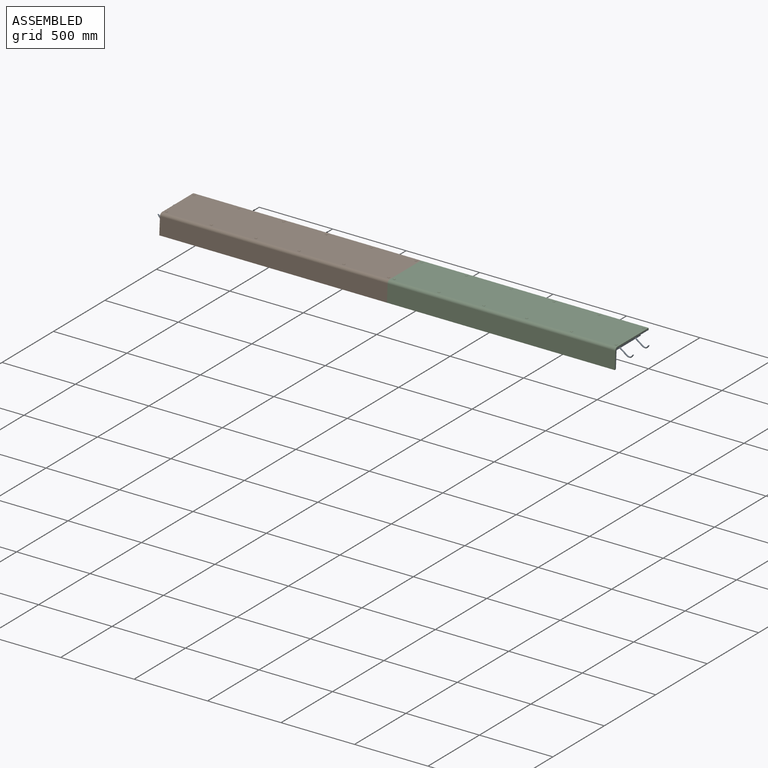
[diagram: assembled view]
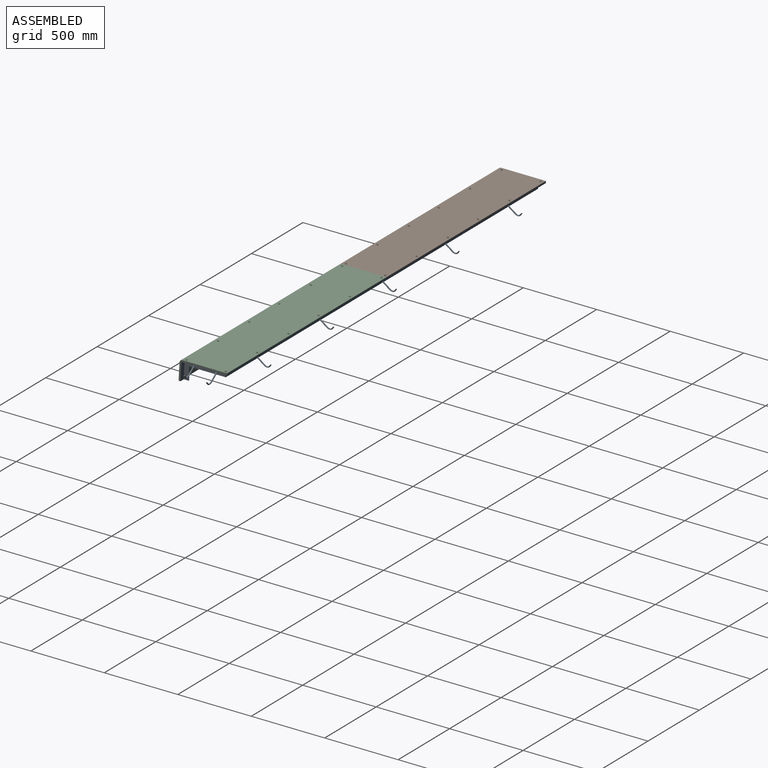
[diagram: assembled view, second angle]
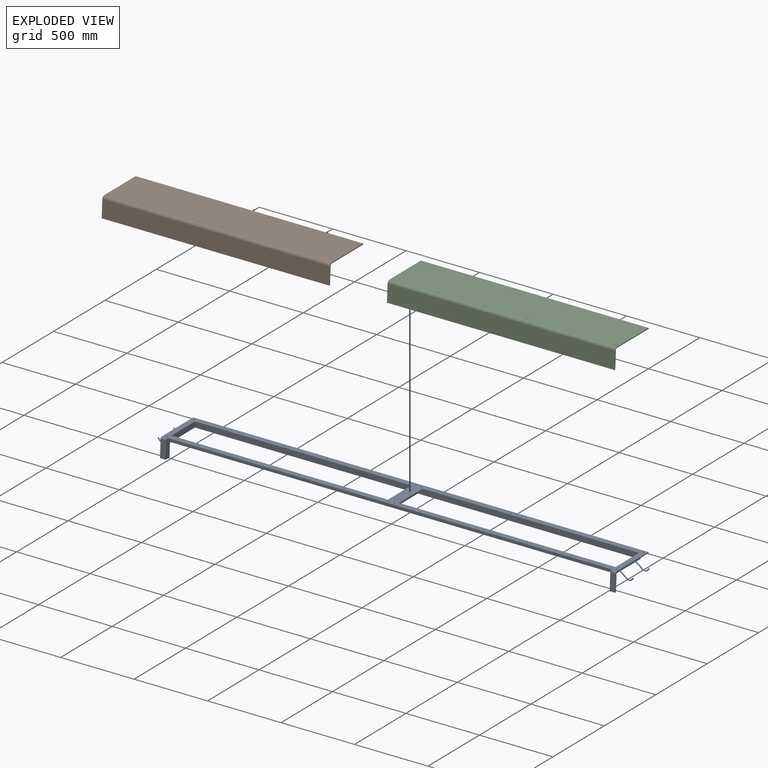
[diagram: exploded view]
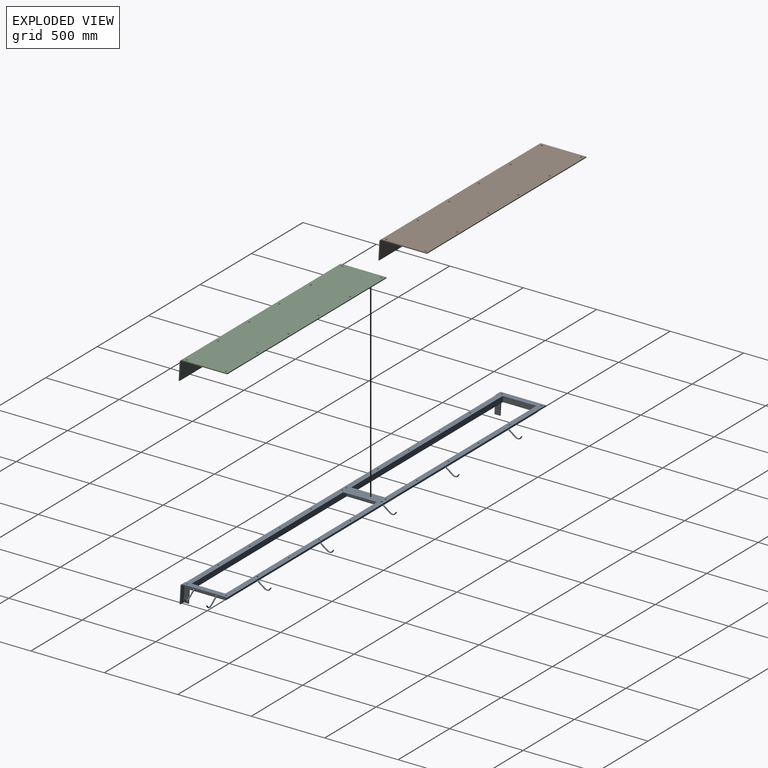
[diagram: exploded view, second angle]
ASSEMBLY  parts=3 mates=2
PART A: 80 faces, bbox 3250.5x399.7x127 mm
  f0: plane 1502.41x38.1mm, normal (0,-1,0), area 57056.3mm2, adj f2,f6,f11,f16,f35,f37
  f1: plane 1504.95x38.1mm, normal (0,1,0), area 57137mm2, adj f4,f11,f16,f33,f34,f36
  f2: plane 228.6x29.21mm, normal (0,0,-1), area 6677.4mm2, adj f0,f32,f35,f37
  f3: plane 1504.95x38.1mm, normal (0,-1,0), area 57137mm2, adj f4,f11,f16,f33,f34,f36
  f4: plane 228.6x38.1mm, normal (-1,0,0), area 8709.7mm2, adj f1,f3,f11,f16
  f5: plane 127x50.8mm, normal (-1,0,0), area 4868mm2, adj f7,f8,f9,f10,f11,f29,f30,f31
  f6: plane 228.6x38.1mm, normal (1,0,0), area 8709.7mm2, adj f0,f11,f16,f32
  f7: cylinder r=12.7mm len=38.1mm, axis (-1,0,0), area 733.3mm2, adj f5,f8,f16,f22
  f8: plane 115x38.1mm, normal (0,-1,0.06), area 4388.3mm2, adj f5,f7,f9,f22
  f9: plane 38.16x38.1mm, normal (0,0,-1), area 444.2mm2, adj f5,f8,f10,f20,f22,f26
  f10: plane 88.9x6.35mm, normal (0,1,-0.06), area 565.4mm2, adj f5,f9,f11,f26
  f11: plane 3035.3x249.02mm, normal (0,0,-1), area 45033.4mm2, adj f0,f1,f3,f4,f5,f6,f10,f24
  f12: plane 114.65x31.75mm, normal (0,1,-0.06), area 3645.8mm2, adj f14,f19,f23,f27
  f13: plane 3098.8x304.8mm, normal (0,0,-1), area 114728mm2, adj f14,f15,f21,f22,f23,f24,f26,f27
  f14: cylinder r=6.35mm len=31.75mm, axis (-1,0,0), area 305.5mm2, adj f12,f13,f23,f27
  f15: plane 3098.8x6.35mm, normal (0,1,0), area 19677.4mm2, adj f13,f16,f22,f23
  f16: plane 3098.8x304.8mm, normal (0,0,1), area 269257.1mm2, adj f0,f1,f3,f4,f6,f7,f15,f17
  f17: cylinder r=12.7mm len=38.1mm, axis (-1,0,0), area 733.3mm2, adj f16,f18,f23,f28
  f18: plane 115x38.1mm, normal (0,-1,0.06), area 4388.3mm2, adj f17,f19,f23,f28
  f19: plane 38.16x38.1mm, normal (0,0,-1), area 444.2mm2, adj f12,f18,f23,f25,f27,f28
  f20: plane 114.65x31.75mm, normal (0,1,-0.06), area 3645.8mm2, adj f9,f21,f22,f26
  f21: cylinder r=6.35mm len=31.75mm, axis (-1,0,0), area 305.5mm2, adj f13,f20,f22,f26
  f22: plane 323.85x127mm, normal (1,0,0), area 2757.4mm2, adj f7,f8,f9,f13,f15,f16,f20,f21
  f23: plane 323.85x127mm, normal (-1,0,0), area 2757.4mm2, adj f12,f13,f14,f15,f16,f17,f18,f19
  f24: plane 3035.3x31.75mm, normal (0,1,0), area 96014.5mm2, adj f11,f13,f26,f27,f63,f65,f67,f69
  f25: plane 88.9x6.35mm, normal (0,1,-0.06), area 565.4mm2, adj f11,f19,f27,f28
  f26: plane 285.74x120.65mm, normal (1,0,0), area 11564.8mm2, adj f9,f10,f11,f13,f20,f21,f24,f73
  f27: plane 285.74x120.65mm, normal (-1,0,0), area 11564.8mm2, adj f11,f12,f13,f14,f19,f24,f25,f77
  f28: plane 127x50.8mm, normal (1,0,0), area 4868mm2, adj f11,f17,f18,f19,f25,f29,f30,f31
  f29: plane 3022.6x31.75mm, normal (0,0,-1), area 95255mm2, adj f5,f28,f30,f31,f41,f44,f45,f46
  f30: plane 3022.6x6.35mm, normal (0,-1,0), area 19193.5mm2, adj f5,f16,f28,f29
  f31: plane 3022.6x31.75mm, normal (0,-1,0), area 95967.6mm2, adj f5,f11,f28,f29
  f32: plane 1502.41x38.1mm, normal (0,1,0), area 57056.3mm2, adj f2,f6,f11,f16,f35,f37
  f33: plane 228.6x31.75mm, normal (0,0,-1), area 7258mm2, adj f1,f3,f34,f36
  f34: plane 228.6x6.35mm, normal (1,0,0), area 1451.6mm2, adj f1,f3,f16,f33
  f35: plane 228.6x6.35mm, normal (-1,0,0), area 1451.6mm2, adj f0,f2,f16,f32
  f36: plane 228.6x31.75mm, normal (1,0,0), area 7258mm2, adj f1,f3,f11,f33
  f37: plane 228.6x31.75mm, normal (-1,0,0), area 7258mm2, adj f0,f2,f11,f32
  f38: cylinder r=4.76mm len=9.53mm, axis (0,0,1), area 190mm2, adj f13,f16
  f39: cylinder r=4.76mm len=9.53mm, axis (0,0,1), area 190mm2, adj f13,f16
  f40: cylinder r=4.76mm len=9.53mm, axis (0,0,1), area 190mm2, adj f13,f16
  f41: cylinder r=4.76mm len=9.53mm, axis (0,0,1), area 190mm2, adj f16,f29
  f42: cylinder r=4.76mm len=9.53mm, axis (0,0,1), area 190mm2, adj f13,f16
  f43: cylinder r=4.76mm len=9.53mm, axis (0,0,1), area 190mm2, adj f13,f16
  f44: cylinder r=4.76mm len=9.53mm, axis (0,0,1), area 190mm2, adj f16,f29
  f45: cylinder r=4.76mm len=9.53mm, axis (0,0,1), area 190mm2, adj f16,f29
  f46: cylinder r=4.76mm len=9.53mm, axis (0,0,1), area 190mm2, adj f16,f29
  f47: cylinder r=4.76mm len=9.53mm, axis (0,0,1), area 190mm2, adj f13,f16
  f48: cylinder r=4.76mm len=9.53mm, axis (0,0,1), area 190mm2, adj f13,f16
  f49: cylinder r=4.76mm len=9.53mm, axis (0,0,1), area 190mm2, adj f16,f29
  f50: cylinder r=4.76mm len=9.53mm, axis (0,0,1), area 190mm2, adj f13,f16
  f51: cylinder r=4.76mm len=9.53mm, axis (0,0,1), area 190mm2, adj f16,f29
  f52: cylinder r=4.76mm len=9.53mm, axis (0,0,1), area 190mm2, adj f16,f29
  f53: cylinder r=4.76mm len=9.53mm, axis (0,0,1), area 190mm2, adj f13,f16
  f54: cylinder r=4.76mm len=9.53mm, axis (0,0,1), area 190mm2, adj f13,f16
  f55: cylinder r=4.76mm len=9.53mm, axis (0,0,1), area 190mm2, adj f16,f29
  f56: cylinder r=4.76mm len=9.53mm, axis (0,0,1), area 190mm2, adj f16,f29
  f57: cylinder r=4.76mm len=9.53mm, axis (0,0,1), area 190mm2, adj f13,f16
  f58: cylinder r=4.76mm len=9.53mm, axis (0,0,1), area 190mm2, adj f13,f16
  f59: cylinder r=4.76mm len=9.53mm, axis (0,0,1), area 190mm2, adj f16,f29
  f60: cylinder r=4.76mm len=9.53mm, axis (0,0,1), area 190mm2, adj f13,f16
  f61: cylinder r=4.76mm len=9.53mm, axis (0,0,1), area 190mm2, adj f13,f16
  f62: plane 9.53x9.46mm, normal (0,-0.12,0.99), area 71.3mm2, adj f63
  f63: bspline ~107.6x63.88mm, area 3289.7mm2, adj f24,f62
  f64: plane 9.53x9.46mm, normal (0,-0.12,0.99), area 71.3mm2, adj f65
  f65: bspline ~107.6x63.88mm, area 3289.7mm2, adj f24,f64
  f66: plane 9.53x9.46mm, normal (0,-0.12,0.99), area 71.3mm2, adj f67
  f67: bspline ~107.6x63.88mm, area 3289.7mm2, adj f24,f66
  f68: plane 9.53x9.46mm, normal (0,-0.12,0.99), area 71.3mm2, adj f69
  f69: bspline ~107.6x63.88mm, area 3289.7mm2, adj f24,f68
  f70: plane 9.53x9.46mm, normal (0,-0.12,0.99), area 71.3mm2, adj f71
  f71: bspline ~107.6x63.88mm, area 3289.7mm2, adj f24,f70
  f72: plane 9.53x9.46mm, normal (-0.12,0,0.99), area 71.3mm2, adj f73
  f73: bspline ~107.6x63.88mm, area 3289.7mm2, adj f26,f72
  f74: plane 9.53x9.46mm, normal (-0.12,0,0.99), area 71.3mm2, adj f75
  f75: bspline ~107.6x63.88mm, area 3289.7mm2, adj f26,f74
  f76: plane 9.53x9.46mm, normal (0.12,0,0.99), area 71.3mm2, adj f77
  f77: bspline ~107.6x63.88mm, area 3289.7mm2, adj f27,f76
  f78: plane 9.53x9.46mm, normal (0.12,0,0.99), area 71.3mm2, adj f79
  f79: bspline ~107.6x63.88mm, area 3289.7mm2, adj f27,f78
PART B: 34 faces, bbox 1549.4x330.2x133.4 mm
  f0: plane 1549.4x304.8mm, normal (0,0,-1), area 471204.9mm2, adj f1,f7,f8,f9,f10,f12,f14,f16
  f1: plane 1549.4x6.35mm, normal (0,1,0), area 9838.7mm2, adj f0,f2,f8,f9
  f2: plane 1549.4x304.8mm, normal (0,0,1), area 468836.8mm2, adj f1,f3,f8,f9,f11,f13,f15,f17
  f3: cylinder r=19.05mm len=1549.4mm, axis (-1,0,0), area 44733.1mm2, adj f2,f4,f8,f9
  f4: plane 1549.4x115.35mm, normal (0,-1,0.06), area 178999.3mm2, adj f3,f5,f8,f9
  f5: plane 1549.4x6.36mm, normal (0,0,-1), area 9853.7mm2, adj f4,f6,f8,f9
  f6: plane 1549.4x115mm, normal (0,1,-0.06), area 178455.2mm2, adj f5,f7,f8,f9
  f7: cylinder r=12.7mm len=1549.4mm, axis (-1,0,0), area 29822.1mm2, adj f0,f6,f8,f9
  f8: plane 330.2x133.35mm, normal (1,0,0), area 2820.7mm2, adj f0,f1,f2,f3,f4,f5,f6,f7
  f9: plane 330.2x133.35mm, normal (-1,0,0), area 2820.7mm2, adj f0,f1,f2,f3,f4,f5,f6,f7
  f10: cylinder r=5.28mm len=10.57mm, axis (0,0,1), area 48.8mm2, adj f0,f11
  f11: cone r=5.28mm half-angle=41deg, axis (0,0,1), area 300.8mm2, adj f2,f10
  f12: cylinder r=5.28mm len=10.57mm, axis (0,0,1), area 48.8mm2, adj f0,f13
  f13: cone r=5.28mm half-angle=41deg, axis (0,0,1), area 300.8mm2, adj f2,f12
  f14: cylinder r=5.28mm len=10.57mm, axis (0,0,1), area 48.8mm2, adj f0,f15
  f15: cone r=5.28mm half-angle=41deg, axis (0,0,1), area 300.8mm2, adj f2,f14
  f16: cylinder r=5.28mm len=10.57mm, axis (0,0,1), area 48.8mm2, adj f0,f17
  f17: cone r=5.28mm half-angle=41deg, axis (0,0,1), area 300.8mm2, adj f2,f16
  f18: cylinder r=5.28mm len=10.57mm, axis (0,0,1), area 48.8mm2, adj f0,f19
  f19: cone r=5.28mm half-angle=41deg, axis (0,0,1), area 300.8mm2, adj f2,f18
  f20: cylinder r=5.28mm len=10.57mm, axis (0,0,1), area 48.8mm2, adj f0,f21
  f21: cone r=5.28mm half-angle=41deg, axis (0,0,1), area 300.8mm2, adj f2,f20
  f22: cylinder r=5.28mm len=10.57mm, axis (0,0,1), area 48.8mm2, adj f0,f23
  f23: cone r=5.28mm half-angle=41deg, axis (0,0,1), area 300.8mm2, adj f2,f22
  f24: cylinder r=5.28mm len=10.57mm, axis (0,0,1), area 48.8mm2, adj f0,f25
  f25: cone r=5.28mm half-angle=41deg, axis (0,0,1), area 300.8mm2, adj f2,f24
  f26: cylinder r=5.28mm len=10.57mm, axis (0,0,1), area 48.8mm2, adj f0,f27
  f27: cone r=5.28mm half-angle=41deg, axis (0,0,1), area 300.8mm2, adj f2,f26
  f28: cylinder r=5.28mm len=10.57mm, axis (0,0,1), area 48.8mm2, adj f0,f29
  f29: cone r=5.28mm half-angle=41deg, axis (0,0,1), area 300.8mm2, adj f2,f28
  f30: cylinder r=5.28mm len=10.57mm, axis (0,0,1), area 48.8mm2, adj f0,f31
  f31: cone r=5.28mm half-angle=41deg, axis (0,0,1), area 300.8mm2, adj f2,f30
  f32: cylinder r=5.28mm len=10.57mm, axis (0,0,1), area 48.8mm2, adj f0,f33
  f33: cone r=5.28mm half-angle=41deg, axis (0,0,1), area 300.8mm2, adj f2,f32
PART C: same geometry as B
PLACE A t=(55.25,-95.69,115)mm fixed
PLACE B t=(-1494.15,-95.69,121.35)mm
PLACE C t=(55.25,-95.69,121.35)mm
MATE fastened C.f10 <-> A.f39  axis (0,0,1) through (1585.6,190.06,124.53)mm
MATE fastened B.f8 <-> C.f9  axis (1,0,0) through (55.25,3.39,102.22)mm
